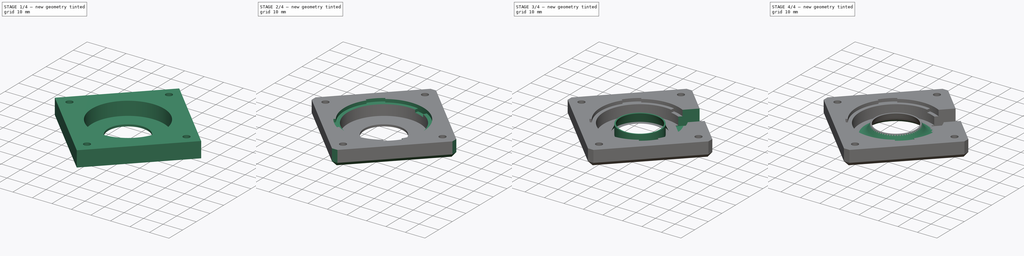
[diagram: build sequence overview — one tinted view per stage of 4, left to right]
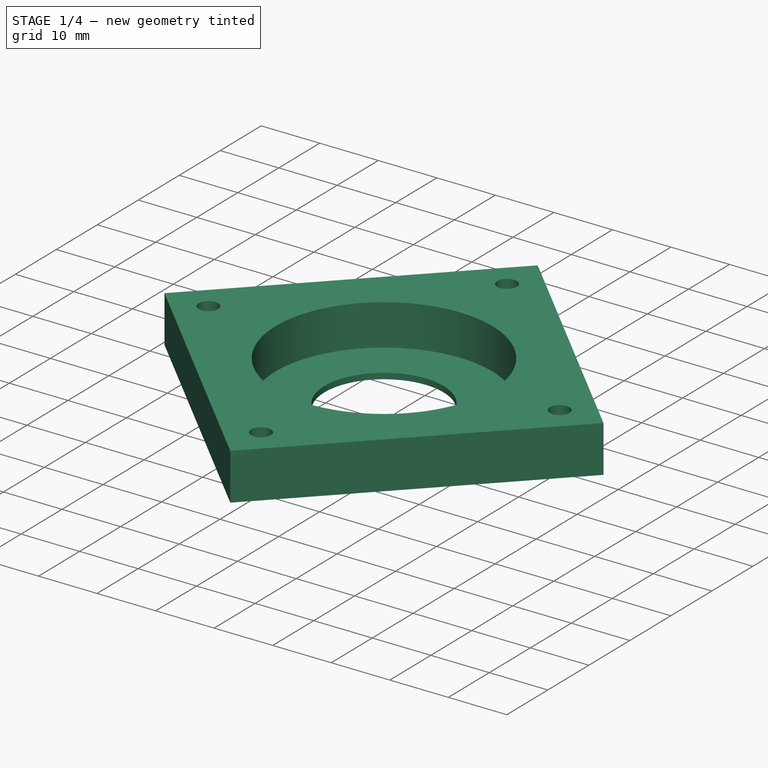
[diagram: stage 1 of 4 — iso view after this stage's code; geometry added in this stage tinted green]
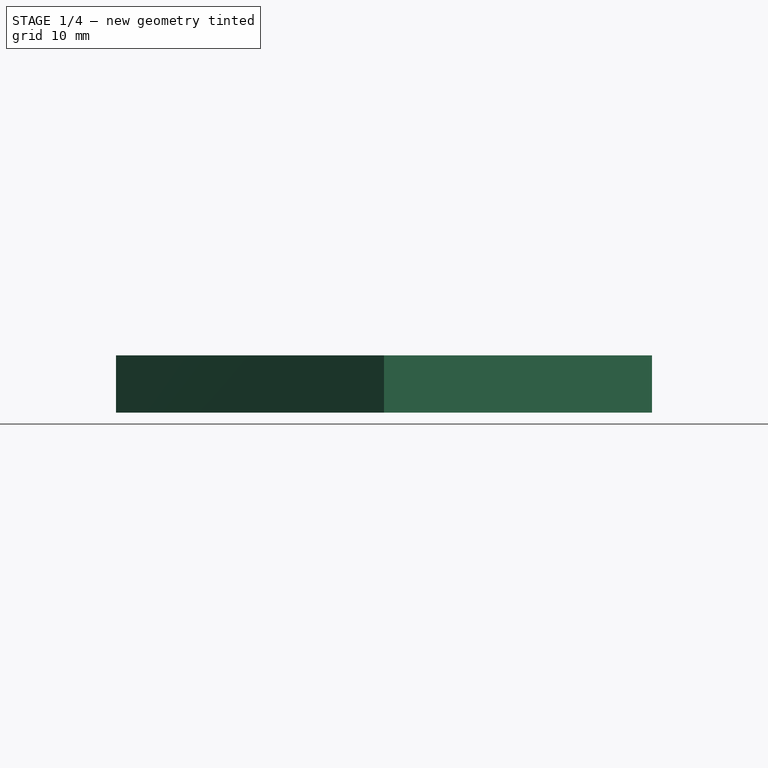
[diagram: stage 1 of 4 — front view after this stage's code; geometry added in this stage tinted green]
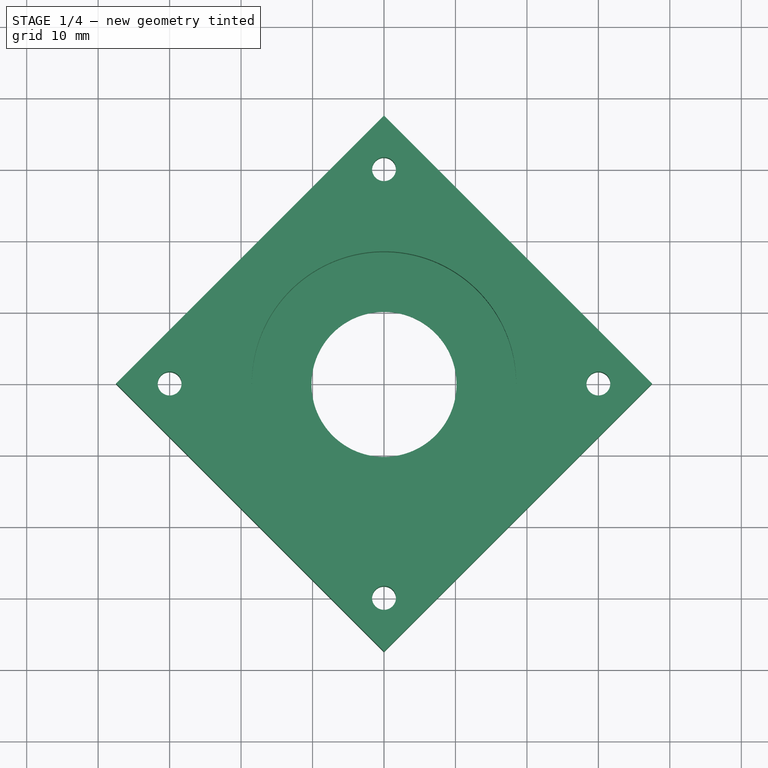
[diagram: stage 1 of 4 — top view after this stage's code; geometry added in this stage tinted green]
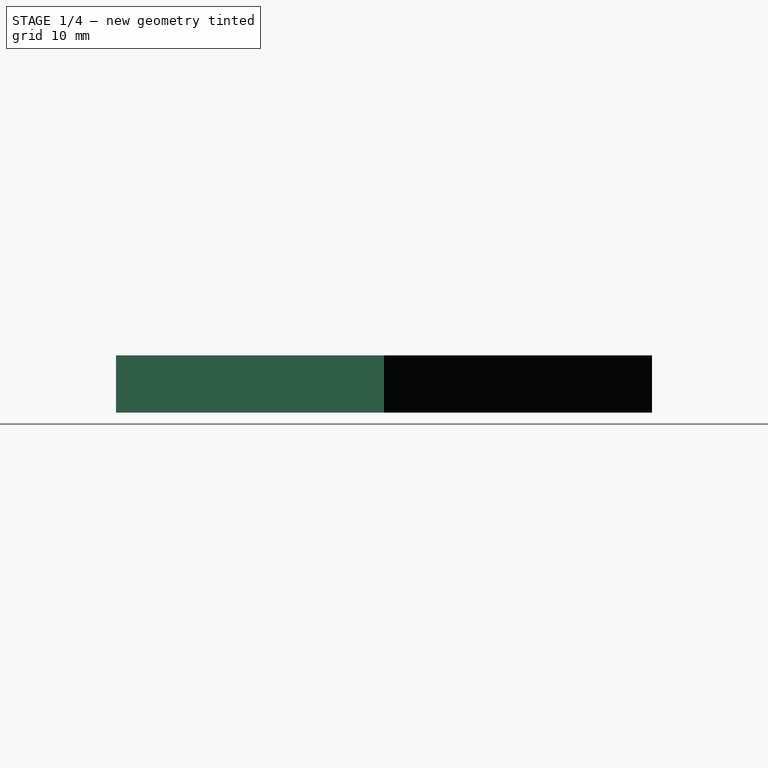
[diagram: stage 1 of 4 — right view after this stage's code; geometry added in this stage tinted green]
FCSTD DOCUMENT  (FreeCAD 0.19R24276 (Git))
Label: bottom-light-mount
License: All rights reserved
LicenseURL: http://en.wikipedia.org/wiki/All_rights_reserved
objects: Sketcher::SketchObject×6, PartDesign::Pocket×4, PartDesign::Chamfer×3, PartDesign::Plane×3, PartDesign::Pad×2, PartDesign::Fillet×1, PartDesign::Body×1
note: 30 computed .brp shape members not serialized (recipe doc carries the construction recipe); baked Part::Feature solids carry a one-line shape summary decoded from their .brp

FEATURE [Sketcher::SketchObject] Sketch
  FullyConstrained = true
  MapMode = 5
  Support = -> [XY_Plane]
  sketch-geometry (13):
    g0: Circle CenterX=0 CenterY=0 CenterZ=0 NormalX=0 NormalY=0 NormalZ=1 AngleXU=0 Radius=10.15
    g1: LineSegment StartX=0 StartY=37.5 StartZ=0 EndX=37.5 EndY=0 EndZ=0
    g2: LineSegment StartX=37.5 StartY=0 StartZ=0 EndX=0 EndY=-37.5 EndZ=0
    g3: LineSegment StartX=0 StartY=-37.5 StartZ=0 EndX=-37.5 EndY=7.1e-15 EndZ=0
    g4: LineSegment StartX=-37.5 StartY=7.1e-15 StartZ=0 EndX=0 EndY=37.5 EndZ=0
    g5: LineSegment StartX=0 StartY=-30 StartZ=0 EndX=30 EndY=3.6e-15 EndZ=0
    g6: LineSegment StartX=30 StartY=3.6e-15 StartZ=0 EndX=0 EndY=30 EndZ=0
    g7: Circle CenterX=0 CenterY=30 CenterZ=0 NormalX=0 NormalY=0 NormalZ=1 AngleXU=0 Radius=1.675
    g8: Circle CenterX=30 CenterY=3.6e-15 CenterZ=0 NormalX=0 NormalY=0 NormalZ=1 AngleXU=0 Radius=1.675
    g9: Circle CenterX=0 CenterY=-30 CenterZ=0 NormalX=0 NormalY=0 NormalZ=1 AngleXU=0 Radius=1.675
    g10: Circle CenterX=-30 CenterY=0 CenterZ=0 NormalX=0 NormalY=0 NormalZ=1 AngleXU=0 Radius=1.675
    g11: LineSegment StartX=-30 StartY=0 StartZ=0 EndX=0 EndY=30 EndZ=0
    g12: LineSegment StartX=-30 StartY=0 StartZ=0 EndX=0 EndY=-30 EndZ=0
  constraints (34):
    c: Coincident(g0,g-1)
    c: PointOnObject(g1,g-2)
    c: PointOnObject(g1,g-1)
    c: Coincident(g1,g2)
    c: PointOnObject(g2,g-2)
    c: Coincident(g2,g3)
    c: Coincident(g3,g4)
    c: Coincident(g4,g1)
    c: Equal(g4,g1)
    c: Equal(g4,g3)
    c: Equal(g4,g2)
    c: Angle(g-1,g4) = 0.785398
    c: PointOnObject(g6,g-2)
    c: PointOnObject(g5,g-2)
    c: Coincident(g5,g6)
    c: DistanceY(g5,g6) = 60
    c: DistanceY(g2,g1) = 75
    c: Diameter(g0) = 20.3
    c: Coincident(g7,g6)
    c: Coincident(g8,g5)
    c: Coincident(g9,g5)
    c: PointOnObject(g10,g-1)
    c: Coincident(g11,g10)
    c: Coincident(g11,g7)
    c: Coincident(g12,g10)
    c: Coincident(g12,g9)
    c: Diameter(g10) = 3.35
    c: Equal(g11,g6)
    c: Equal(g11,g12)
    c: Equal(g11,g5)
    c: Angle(g-1,g11) = 0.785398
    c: Equal(g9,g8)
    c: Equal(g8,g7)
    c: Equal(g7,g10)
FEATURE [PartDesign::Pad] Pad
  AllowMultiFace = false
  Direction = (1,1,1)
  Length = 8
  Length2 = 100
  Profile = -> Sketch
  Reversed = true
  Type = 0
FEATURE [Sketcher::SketchObject] Sketch001
  FullyConstrained = true
  MapMode = 5
  Support = -> [XY_Plane]
  sketch-geometry (1):
    g0: Circle CenterX=0 CenterY=0 CenterZ=0 NormalX=0 NormalY=0 NormalZ=1 AngleXU=0 Radius=18.5
  constraints (2):
    c: Coincident(g0,g-1)
    c: Diameter(g0) = 37
FEATURE [PartDesign::Pocket] Pocket
  AllowMultiFace = false
  BaseFeature = -> Pad
  Length = 7
  Length2 = 100
  Profile = -> Sketch001
  Type = 0
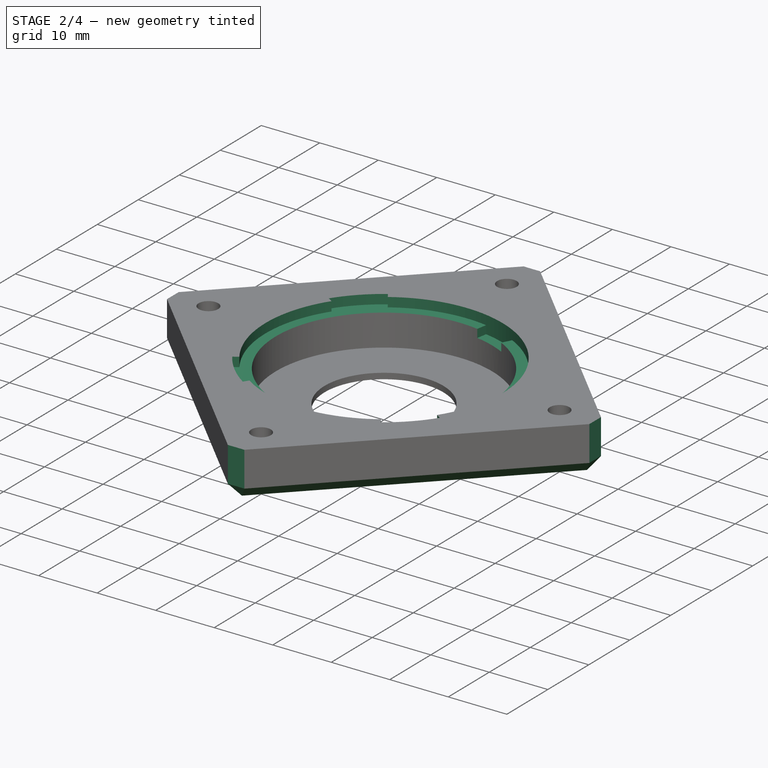
[diagram: stage 2 of 4 — iso view after this stage's code; geometry added in this stage tinted green]
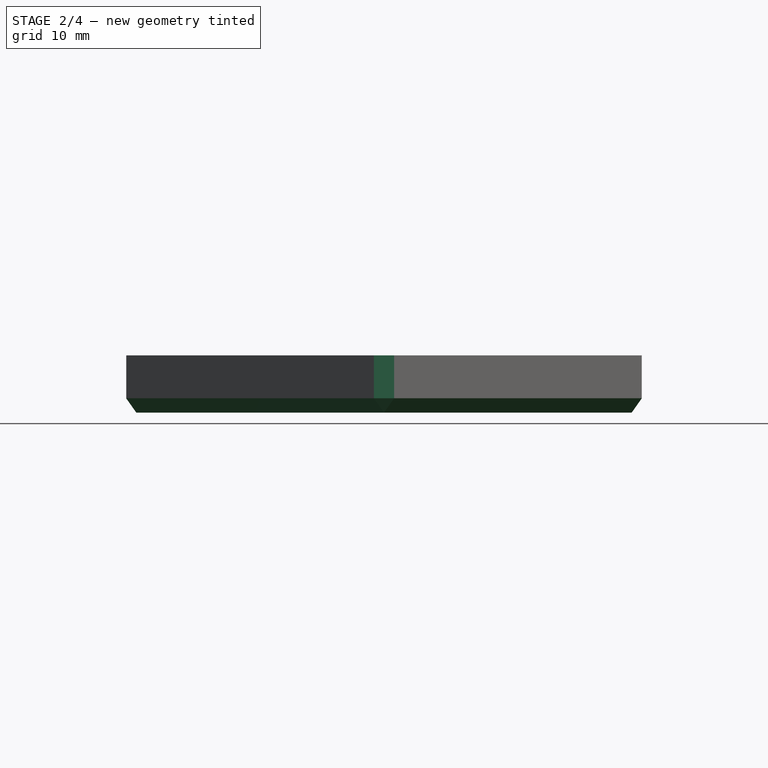
[diagram: stage 2 of 4 — front view after this stage's code; geometry added in this stage tinted green]
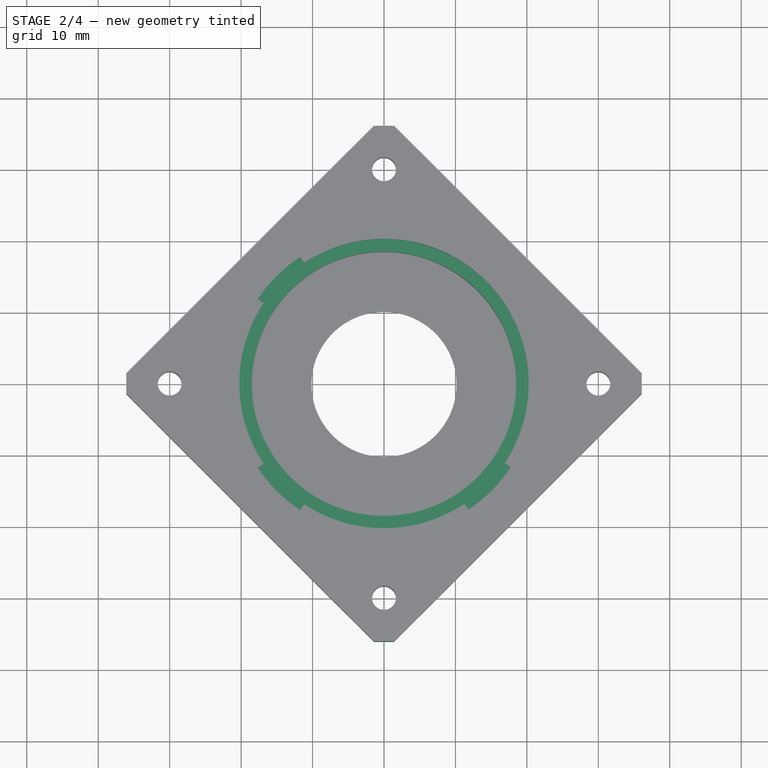
[diagram: stage 2 of 4 — top view after this stage's code; geometry added in this stage tinted green]
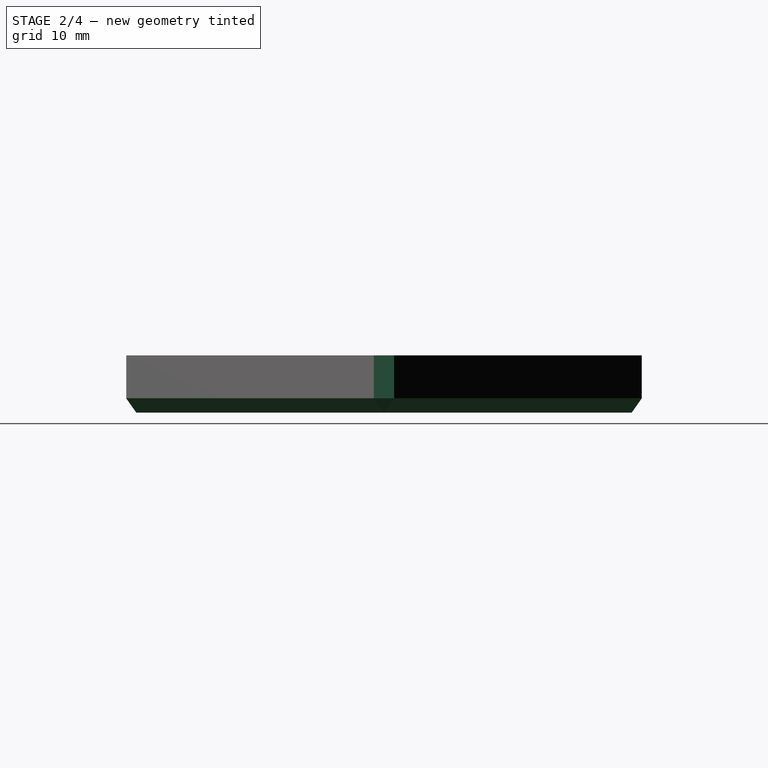
[diagram: stage 2 of 4 — right view after this stage's code; geometry added in this stage tinted green]
FEATURE [Sketcher::SketchObject] Sketch002  label="pcb_mousebites_cutout"
  FullyConstrained = true
  MapMode = 5
  Support = -> [XY_Plane]
  sketch-geometry (14):
    g0: Circle CenterX=0 CenterY=0 CenterZ=0 NormalX=0 NormalY=0 NormalZ=1 AngleXU=0 Radius=20.25
    g1: LineSegment StartX=-16.8464 StartY=11.2367 StartZ=0 EndX=-17.6783 EndY=11.7916 EndZ=0
    g2: LineSegment StartX=-11.18 StartY=16.884 StartZ=0 EndX=-11.7321 EndY=17.7178 EndZ=0
    g3: LineSegment StartX=-16.8419 StartY=-11.2433 StartZ=0 EndX=-17.6736 EndY=-11.7985 EndZ=0
    g4: LineSegment StartX=-11.1733 StartY=-16.8884 StartZ=0 EndX=-11.7251 EndY=-17.7224 EndZ=0
    g5: LineSegment StartX=11.2566 StartY=-16.8331 StartZ=0 EndX=11.8125 EndY=-17.6643 EndZ=0
    g6: LineSegment StartX=16.8972 StartY=-11.16 StartZ=0 EndX=17.7317 EndY=-11.7111 EndZ=0
    g7: ArcOfCircle CenterX=2.8e-15 CenterY=1.8e-15 CenterZ=0 NormalX=0 NormalY=0 NormalZ=1 AngleXU=0 Radius=20.25 StartAngle=2.55335 EndAngle=3.73023
    g8: ArcOfCircle CenterX=1.3e-15 CenterY=8e-16 CenterZ=0 NormalX=0 NormalY=0 NormalZ=1 AngleXU=0 Radius=20.25 StartAngle=5.69949 EndAngle=8.43886
    g9: ArcOfCircle CenterX=-2.6e-15 CenterY=-2e-16 CenterZ=0 NormalX=0 NormalY=0 NormalZ=1 AngleXU=0 Radius=20.25 StartAngle=4.1279 EndAngle=5.30181
    g10: Circle CenterX=2.8e-15 CenterY=1.8e-15 CenterZ=0 NormalX=0 NormalY=0 NormalZ=1 AngleXU=0 Radius=21.25
    g11: ArcOfCircle CenterX=-1.009e-13 CenterY=9.36e-14 CenterZ=0 NormalX=0 NormalY=0 NormalZ=1 AngleXU=0 Radius=21.25 StartAngle=2.15568 EndAngle=2.55335
    g12: ArcOfCircle CenterX=-9.25e-14 CenterY=-1.005e-13 CenterZ=0 NormalX=0 NormalY=0 NormalZ=1 AngleXU=0 Radius=21.25 StartAngle=3.73023 EndAngle=4.1279
    g13: ArcOfCircle CenterX=1.601e-13 CenterY=-1.673e-13 CenterZ=0 NormalX=0 NormalY=0 NormalZ=1 AngleXU=0 Radius=21.25 StartAngle=5.30181 EndAngle=5.69949
  constraints (46):
    c: Coincident(g0,g-1)
    c: Diameter(g0) = 40.5
    c: PointOnObject(g1,g0)
    c: PointOnObject(g2,g0)
    c: PointOnObject(g3,g0)
    c: PointOnObject(g4,g0)
    c: PointOnObject(g5,g0)
    c: PointOnObject(g6,g0)
    c: Coincident(g7,g3)
    c: Coincident(g7,g1)
    c: Tangent(g7,g0)
    c: Coincident(g8,g2)
    c: Coincident(g8,g6)
    c: Tangent(g8,g0)
    c: Coincident(g9,g4)
    c: Coincident(g9,g5)
    c: Tangent(g9,g0)
    c: Coincident(g10,g7)
    c: Diameter(g10) = 42.5
    c: PointOnObject(g5,g10)
    c: PointOnObject(g6,g10)
    c: PointOnObject(g3,g10)
    c: PointOnObject(g4,g10)
    c: PointOnObject(g1,g10)
    c: PointOnObject(g2,g10)
    c: Coincident(g11,g1)
    c: Coincident(g11,g2)
    c: Tangent(g11,g10)
    c: Coincident(g12,g3)
    c: Coincident(g12,g4)
    c: Coincident(g13,g5)
    c: Coincident(g13,g6)
    c: Tangent(g13,g10)
    c: Perpendicular(g9,g5)
    c: Perpendicular(g8,g6)
    c: Perpendicular(g9,g4)
    c: Perpendicular(g7,g3)
    c: Equal(g11,g12)
    c: Distance(g5,g6) = 8
    c: Distance(g4,g3) = 8
    c: Distance(g1,g2) = 8
    c: Perpendicular(g7,g1)
    c: Perpendicular(g8,g2)
    c: Distance(g5,g4) = 22.43
    c: Distance(g3,g1) = 22.48
    c: DistanceX(g2,g7) = 11.18
FEATURE [PartDesign::Pocket] Pocket001
  AllowMultiFace = false
  BaseFeature = -> Pocket
  Length = 1.6
  Length2 = 100
  Profile = -> Sketch002
  Type = 0
FEATURE [Sketcher::SketchObject] Sketch003  label="JST_Cutout"
  FullyConstrained = true
  MapMode = 5
  Support = -> [XY_Plane]
  sketch-geometry (8):
    g0: LineSegment StartX=0 StartY=8.83883 StartZ=0 EndX=17.6777 EndY=26.5165 EndZ=0
    g1: LineSegment StartX=17.6777 StartY=26.5165 StartZ=0 EndX=26.5165 EndY=17.6777 EndZ=0
    g2: LineSegment StartX=26.5165 StartY=17.6777 StartZ=0 EndX=8.83883 EndY=0 EndZ=0
    g3: LineSegment StartX=8.83883 StartY=0 StartZ=0 EndX=0 EndY=8.83883 EndZ=0
    g4: LineSegment StartX=7.07107 StartY=15.9099 StartZ=0 EndX=15.9099 EndY=7.07107 EndZ=0
    g5: LineSegment StartX=7.07107 StartY=15.9099 StartZ=0 EndX=17.6777 EndY=26.5165 EndZ=0
    g6: LineSegment StartX=26.5165 StartY=17.6777 StartZ=0 EndX=15.9099 EndY=7.07107 EndZ=0
    g7: LineSegment StartX=17.6777 StartY=26.5165 StartZ=0 EndX=26.5165 EndY=17.6777 EndZ=0
  constraints (22):
    c: PointOnObject(g0,g-2)
    c: Coincident(g0,g1)
    c: Coincident(g1,g2)
    c: PointOnObject(g2,g-1)
    c: Coincident(g2,g3)
    c: Coincident(g3,g0)
    c: Perpendicular(g3,g0)
    c: Perpendicular(g2,g3)
    c: Perpendicular(g1,g0)
    c: Angle(g3,g-1) = 0.785398
    c: Distance(g0) = 25
    c: Distance(g1) = 12.5
    c: PointOnObject(g4,g0)
    c: PointOnObject(g4,g2)
    c: Coincident(g5,g4)
    c: Coincident(g5,g0)
    c: Coincident(g6,g1)
    c: Coincident(g6,g4)
    c: Coincident(g7,g5)
    c: Coincident(g7,g6)
    c: Perpendicular(g6,g4)
    c: Distance(g4,g0) = 10
FEATURE [Sketcher::SketchObject] Sketch004  label="CapacitorCutOut"
  FullyConstrained = true
  MapMode = 5
  Support = -> [XY_Plane]
  sketch-geometry (6):
    g0: Circle CenterX=0 CenterY=0 CenterZ=0 NormalX=0 NormalY=0 NormalZ=1 AngleXU=0 Radius=20.25
    g1: Circle CenterX=0 CenterY=0 CenterZ=0 NormalX=0 NormalY=0 NormalZ=1 AngleXU=0 Radius=18
    g2: LineSegment StartX=3.47625 StartY=19.9494 StartZ=0 EndX=3.09 EndY=17.7328 EndZ=0
    g3: LineSegment StartX=8.3005 StartY=15.9719 StartZ=0 EndX=9.33806 EndY=17.9684 EndZ=0
    g4: ArcOfCircle CenterX=-8.72e-14 CenterY=-2.394e-13 CenterZ=0 NormalX=0 NormalY=0 NormalZ=1 AngleXU=0 Radius=18 StartAngle=1.09152 EndAngle=1.39828
    g5: ArcOfCircle CenterX=2.871e-13 CenterY=8.524e-13 CenterZ=0 NormalX=0 NormalY=0 NormalZ=1 AngleXU=0 Radius=20.25 StartAngle=1.09152 EndAngle=1.39828
  constraints (18):
    c: Coincident(g0,g-1)
    c: Coincident(g1,g0)
    c: Diameter(g0) = 40.5
    c: Diameter(g1) = 36
    c: PointOnObject(g2,g0)
    c: PointOnObject(g2,g1)
    c: PointOnObject(g3,g1)
    c: PointOnObject(g3,g0)
    c: Coincident(g4,g2)
    c: Coincident(g4,g3)
    c: Tangent(g4,g1)
    c: Coincident(g5,g2)
    c: Coincident(g5,g3)
    c: Tangent(g5,g0)
    c: Perpendicular(g1,g2)
    c: Perpendicular(g4,g3)
    c: Distance(g2,g3) = 5.5
    c: DistanceX(g5,g2) = 3.09
FEATURE [PartDesign::Pocket] Pocket004  label="CapacitorCutout_Pocket"
  BaseFeature = -> Pocket001
  Length = 3
  Length2 = 100
  Profile = -> Sketch004
  Type = 0
FEATURE [PartDesign::Chamfer] Chamfer
  Angle = 45
  Base = -> Pocket004 [Edge10,Edge2,Edge8,Edge30,Edge5,Edge7,Edge1,Edge4]
  BaseFeature = -> Pocket004
  ChamferType = 0
  FlipDirection = false
  Size = 2
  Size2 = 1
  SupportTransform = false
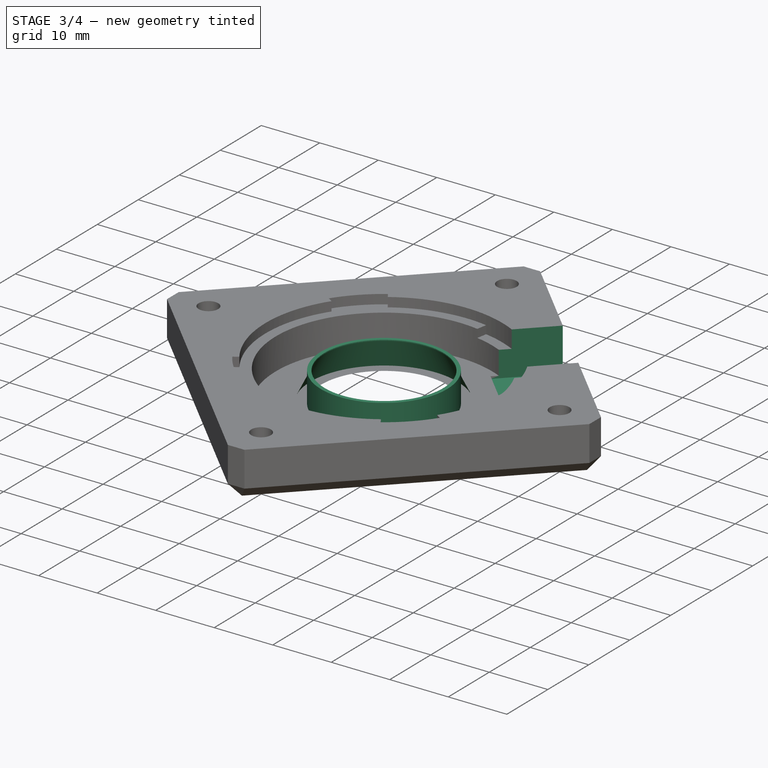
[diagram: stage 3 of 4 — iso view after this stage's code; geometry added in this stage tinted green]
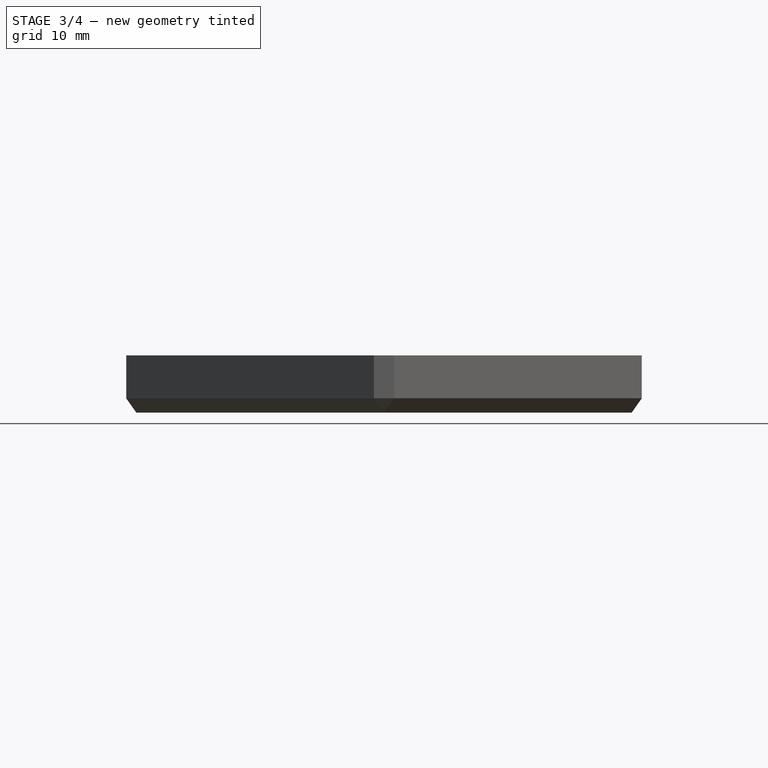
[diagram: stage 3 of 4 — front view after this stage's code; geometry added in this stage tinted green]
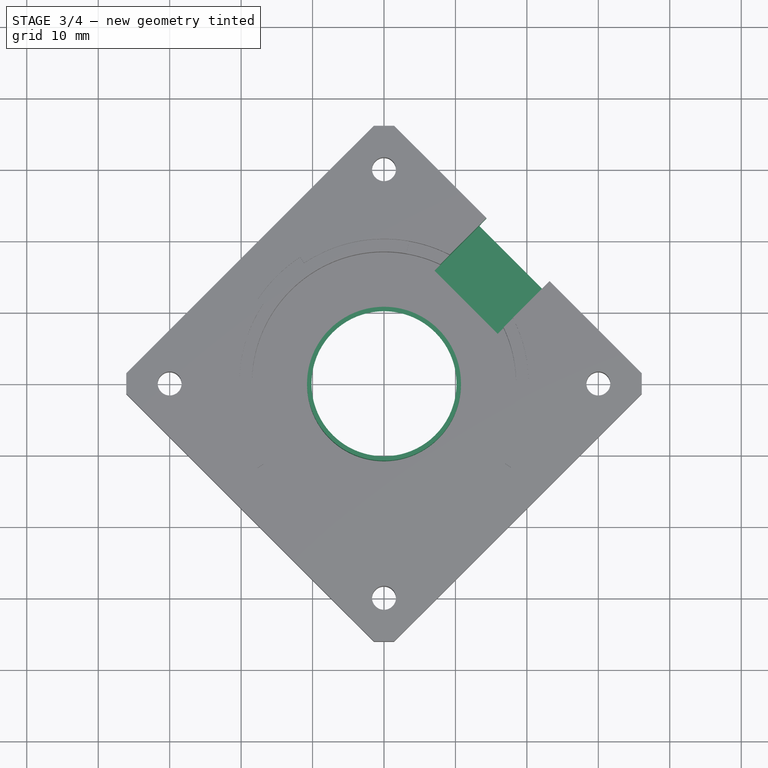
[diagram: stage 3 of 4 — top view after this stage's code; geometry added in this stage tinted green]
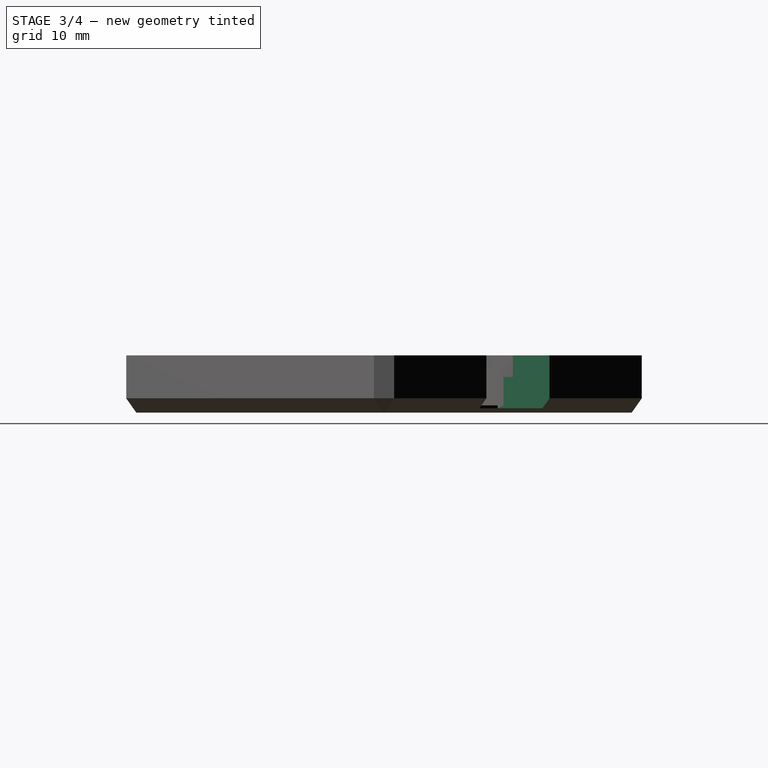
[diagram: stage 3 of 4 — right view after this stage's code; geometry added in this stage tinted green]
FEATURE [PartDesign::Pocket] Pocket002  label="JST_Pocket"
  AllowMultiFace = false
  BaseFeature = -> Chamfer
  Length = 7.4
  Length2 = 100
  Profile = -> Sketch003
  Type = 0
FEATURE [PartDesign::Plane] DatumPlane
  Length = 116.353
  MapMode = 5
  Placement = pos=(-18.75,18.75,0) rot=(-0.281085,0.678598,0.678598;3.68962rad)
  ResizeMode = 0
  Support = -> [Pocket002]
  Width = 64.2875
FEATURE [PartDesign::Plane] DatumPlane002
  Length = 86.6059
  MapMode = 5
  Placement = pos=(0,0,-7) rot=(0,0,1;0rad)
  ResizeMode = 0
  Support = -> [Chamfer]
  Width = 86.6059
FEATURE [Sketcher::SketchObject] Sketch005
  FullyConstrained = true
  MapMode = 5
  Placement = pos=(0,0,-7) rot=(0,0,1;0rad)
  Support = -> [DatumPlane002]
  sketch-geometry (2):
    g0: Circle CenterX=0 CenterY=0 CenterZ=0 NormalX=0 NormalY=0 NormalZ=1 AngleXU=0 Radius=10.15
    g1: Circle CenterX=0 CenterY=0 CenterZ=0 NormalX=0 NormalY=0 NormalZ=1 AngleXU=0 Radius=10.775
  constraints (4):
    c: Coincident(g0,g-1)
    c: Coincident(g1,g0)
    c: Diameter(g0) = 20.3
    c: Diameter(g1) = 21.55
FEATURE [PartDesign::Pad] Pad001
  BaseFeature = -> Pocket002
  Direction = (1,1,1)
  Length = 5.1
  Length2 = 100
  Profile = -> Sketch005
  Type = 0
FEATURE [PartDesign::Chamfer] Chamfer001
  Angle = 64
  Base = -> Pad001 [Edge119]
  BaseFeature = -> Pad001
  ChamferType = 2
  FlipDirection = false
  Size = 2.9
  Size2 = 1
  SupportTransform = false
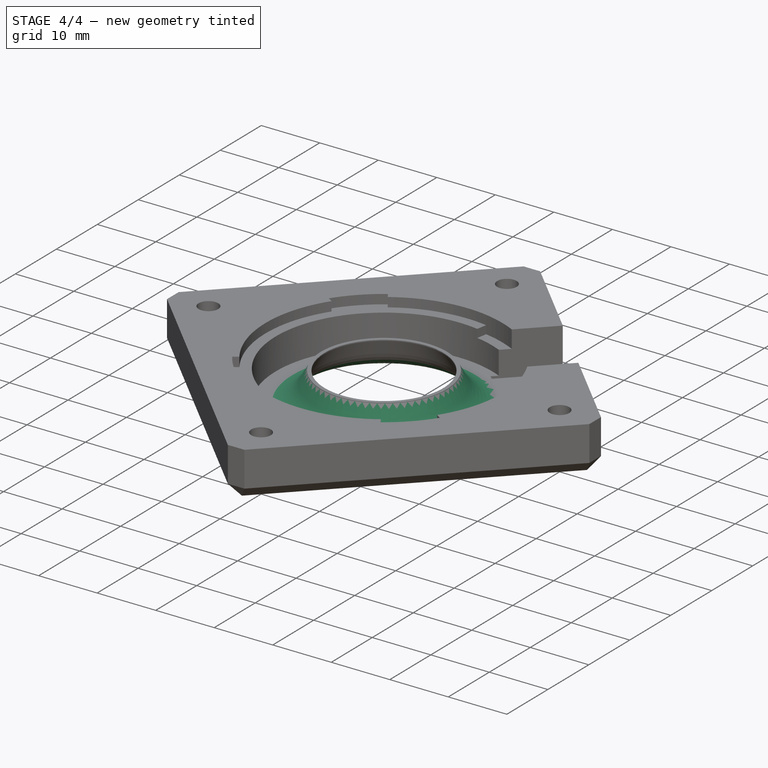
[diagram: stage 4 of 4 — iso view after this stage's code; geometry added in this stage tinted green]
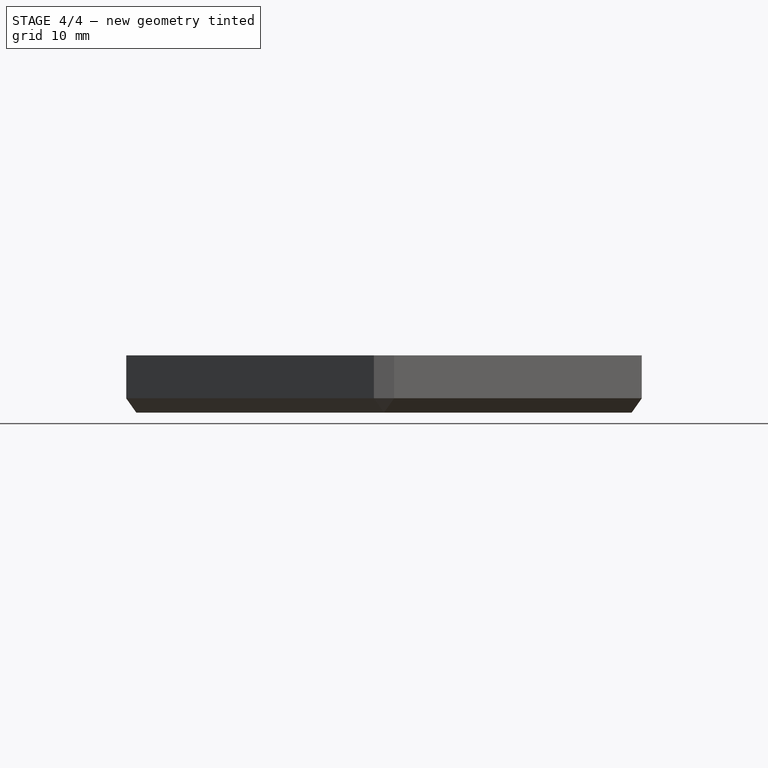
[diagram: stage 4 of 4 — front view after this stage's code; geometry added in this stage tinted green]
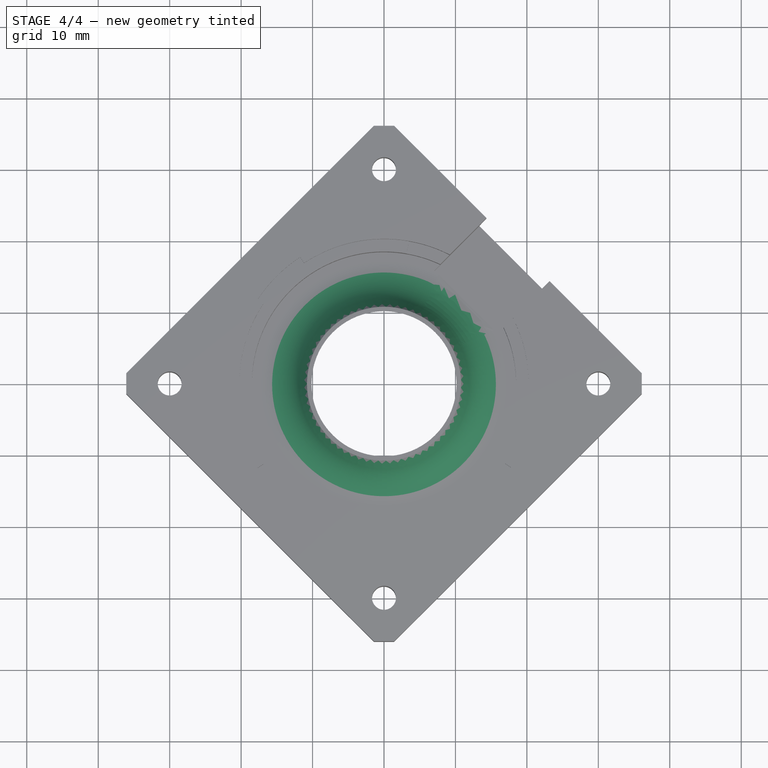
[diagram: stage 4 of 4 — top view after this stage's code; geometry added in this stage tinted green]
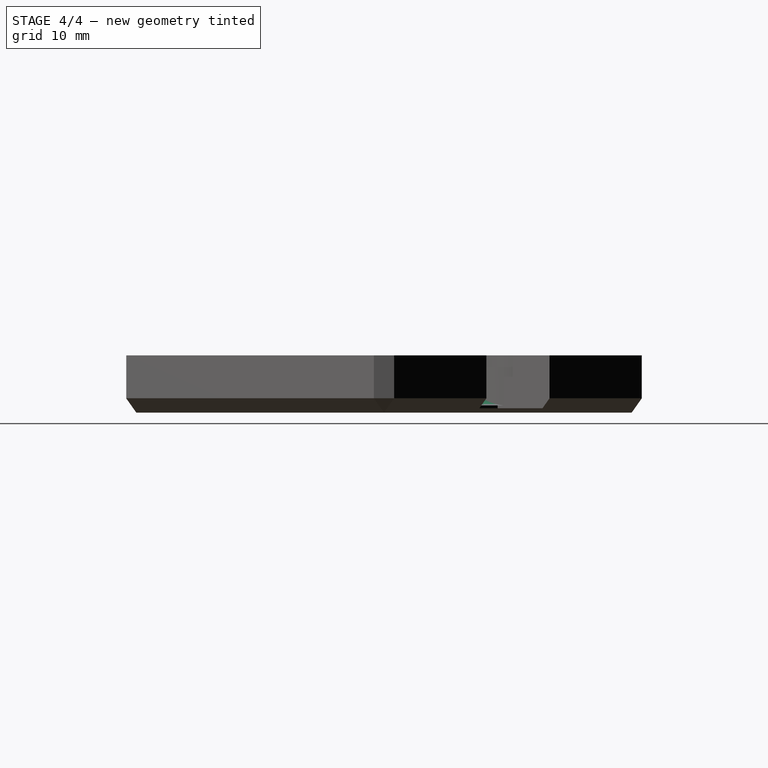
[diagram: stage 4 of 4 — right view after this stage's code; geometry added in this stage tinted green]
FEATURE [PartDesign::Chamfer] Chamfer002
  Angle = 60
  Base = -> Chamfer001 [Edge113]
  BaseFeature = -> Chamfer001
  ChamferType = 2
  FlipDirection = false
  Size = 2.9
  Size2 = 1
  SupportTransform = false
FEATURE [PartDesign::Fillet] Fillet
  Base = -> Chamfer002 [Edge123,Edge1]
  BaseFeature = -> Chamfer002
  Radius = 6
  SupportTransform = false
FEATURE [PartDesign::Plane] DatumPlane001  label="PrintPlane"
  AttachmentOffset = pos=(0,0,0) rot=(0,0,1;0.785398rad)
  Length = 122.479
  MapMode = 5
  Placement = pos=(0,0,-8) rot=(0.92388,-0.382683,0;3.14159rad)
  ResizeMode = 0
  Support = -> [Fillet]
  Width = 122.479
FEATURE [PartDesign::Body] Body
  Group = -> [Sketch,Pad,Sketch001,Pocket,Sketch002,Pocket001,Pocket004,Sketch003,Chamfer,Pocket002,DatumPlane,DatumPlane001,Sketch004,DatumPlane002,Sketch005,Pad001,Chamfer001,Chamfer002,Fillet]
  Origin = -> Origin
  Tip = -> Fillet
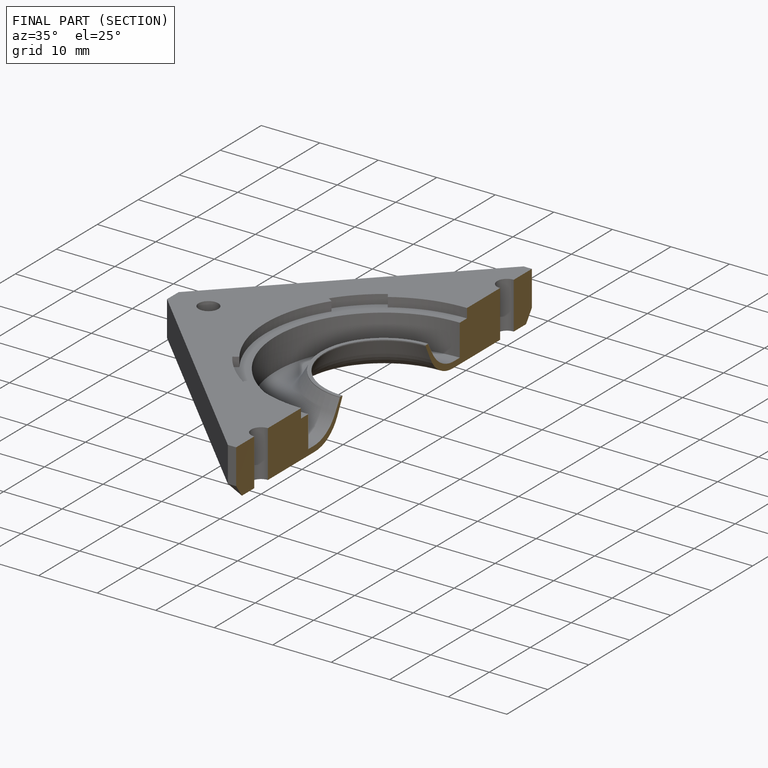
[diagram: finished part — half-section view (interior)]
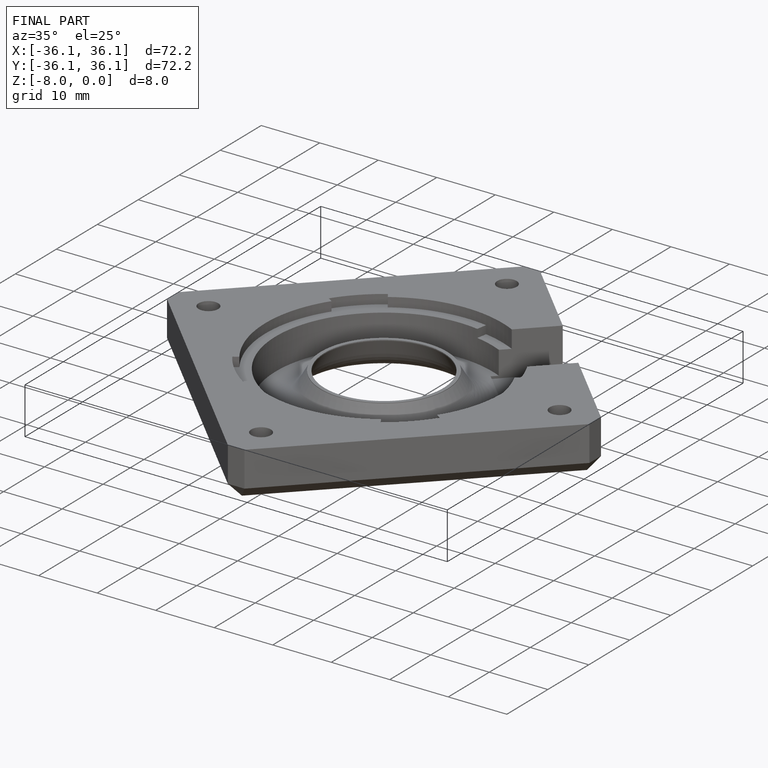
[diagram: finished part — iso view with bounding-box wireframe]
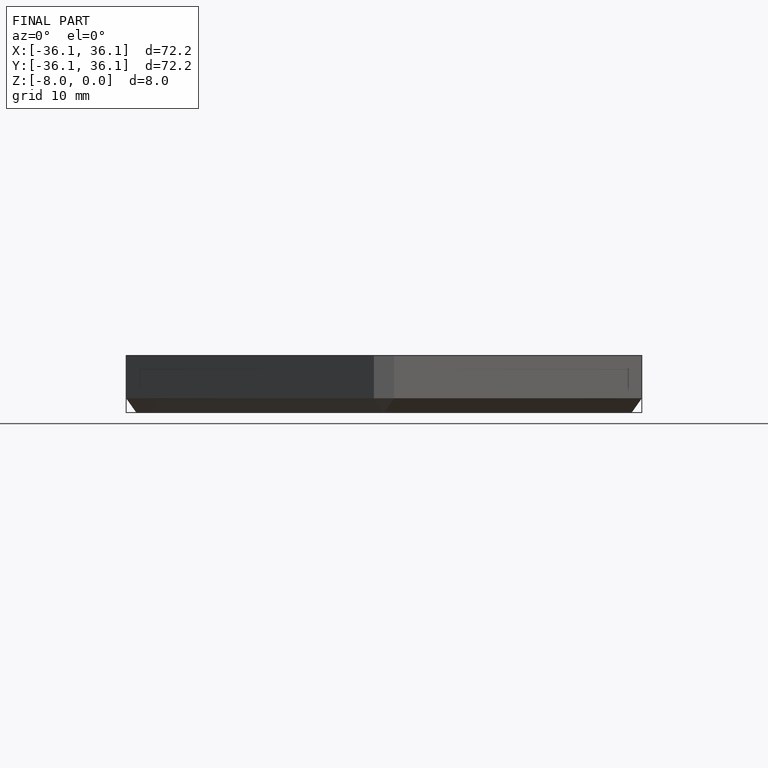
[diagram: finished part — front view with bounding-box wireframe]
